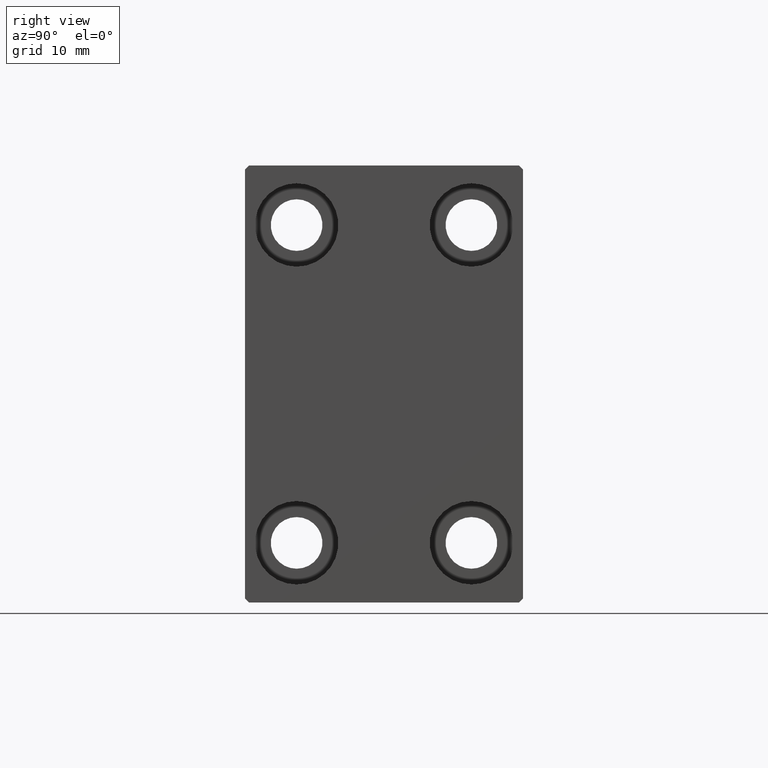
[diagram: clean part render]
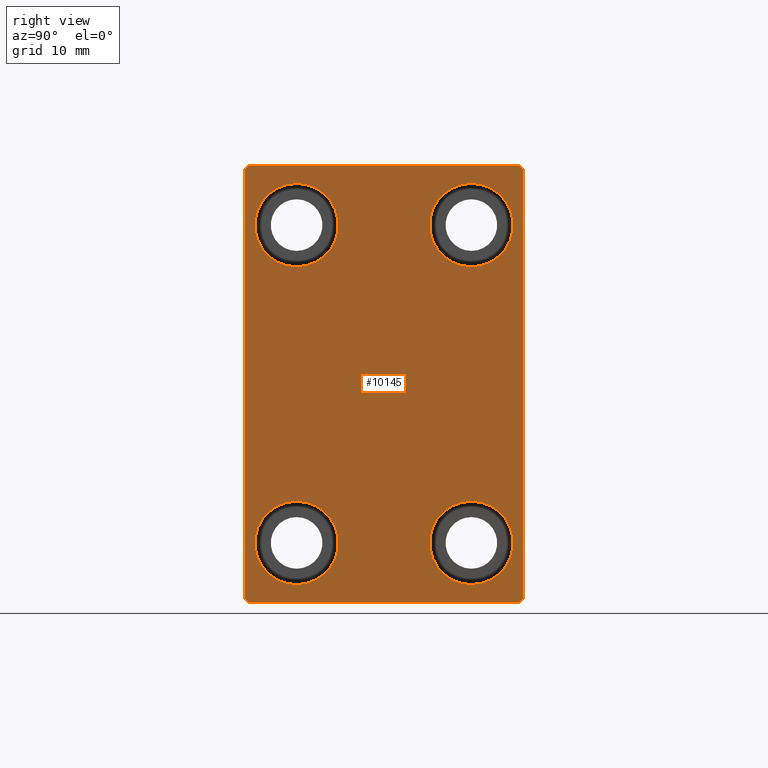
[diagram: same view with one face highlighted and labeled with its STEP entity id]
A machine part, right view. The second image highlights one B-rep face of the part: STEP entity #10145.
In plain terms, the highlighted planar face has unit normal (1, 0, 0).
Its self-contained STEP definition (entity closure, byte-faithful):
#1150 = DIRECTION ( 'NONE',  ( 0.000000000000000000, 1.000000000000000000, 0.000000000000000000 ) ) ;
#1172 = CARTESIAN_POINT ( 'NONE',  ( 56.00000000000000000, 11.00000000000000355, 14.75000000000000000 ) ) ;
#2263 = CARTESIAN_POINT ( 'NONE',  ( 56.00000000000000000, -11.00000000000000355, -20.00000000000000000 ) ) ;
#2316 = CARTESIAN_POINT ( 'NONE',  ( 56.00000000000000000, 11.00000000000000355, 20.00000000000000000 ) ) ;
#2341 = DIRECTION ( 'NONE',  ( -1.000000000000000000, -0.000000000000000000, -0.000000000000000000 ) ) ;
#2397 = CARTESIAN_POINT ( 'NONE',  ( 56.00000000000000000, 17.00000000000000711, -27.50000000000000355 ) ) ;
#2409 = VERTEX_POINT ( 'NONE', #30400 ) ;
#3475 = DIRECTION ( 'NONE',  ( -1.000000000000000000, -0.000000000000000000, -0.000000000000000000 ) ) ;
#3936 = DIRECTION ( 'NONE',  ( -1.000000000000000000, -0.000000000000000000, -0.000000000000000000 ) ) ;
#3972 = AXIS2_PLACEMENT_3D ( 'NONE', #7181, #23813, #27585 ) ;
#4050 = DIRECTION ( 'NONE',  ( 0.000000000000000000, 0.000000000000000000, 1.000000000000000000 ) ) ;
#4285 = EDGE_LOOP ( 'NONE', ( #13482, #14952 ) ) ;
#4695 = AXIS2_PLACEMENT_3D ( 'NONE', #39446, #9096, #22633 ) ;
#5252 = EDGE_CURVE ( 'NONE', #6722, #2409, #12410, .T. ) ;
#5301 = VERTEX_POINT ( 'NONE', #23706 ) ;
#5690 = EDGE_CURVE ( 'NONE', #24501, #8413, #24411, .T. ) ;
#5865 = DIRECTION ( 'NONE',  ( 0.000000000000000000, 0.000000000000000000, 1.000000000000000000 ) ) ;
#6140 = DIRECTION ( 'NONE',  ( 0.000000000000000000, 0.000000000000000000, 1.000000000000000000 ) ) ;
#6405 = VERTEX_POINT ( 'NONE', #19904 ) ;
#6585 = EDGE_CURVE ( 'NONE', #16582, #21945, #21591, .T. ) ;
#6722 = VERTEX_POINT ( 'NONE', #31560 ) ;
#6821 = CARTESIAN_POINT ( 'NONE',  ( 56.00000000000000000, 11.00000000000000355, 20.00000000000000000 ) ) ;
#7181 = CARTESIAN_POINT ( 'NONE',  ( 56.00000000000000000, 0.000000000000000000, 0.000000000000000000 ) ) ;
#7515 = CIRCLE ( 'NONE', #4695, 5.250000000000000888 ) ;
#7745 = CARTESIAN_POINT ( 'NONE',  ( 56.00000000000000000, -16.99999999999999289, -27.50000000000000355 ) ) ;
#7931 = EDGE_CURVE ( 'NONE', #20285, #14840, #31526, .T. ) ;
#8246 = CARTESIAN_POINT ( 'NONE',  ( 56.00000000000000000, -11.00000000000000355, 25.25000000000000000 ) ) ;
#8413 = VERTEX_POINT ( 'NONE', #9932 ) ;
#8557 = CARTESIAN_POINT ( 'NONE',  ( 56.00000000000000000, -11.00000000000000355, 20.00000000000000000 ) ) ;
#8562 = CARTESIAN_POINT ( 'NONE',  ( 56.00000000000000000, -22.25000000000000355, -22.25000000000000355 ) ) ;
#8885 = ORIENTED_EDGE ( 'NONE', *, *, #24106, .T. ) ;
#8989 = DIRECTION ( 'NONE',  ( 0.000000000000000000, 0.000000000000000000, 1.000000000000000000 ) ) ;
#9096 = DIRECTION ( 'NONE',  ( -1.000000000000000000, -0.000000000000000000, -0.000000000000000000 ) ) ;
#9509 = CIRCLE ( 'NONE', #29355, 5.250000000000000888 ) ;
#9787 = LINE ( 'NONE', #43239, #23695 ) ;
#9932 = CARTESIAN_POINT ( 'NONE',  ( 56.00000000000000000, -11.00000000000000355, -25.25000000000000000 ) ) ;
#10145 = ADVANCED_FACE ( 'NONE', ( #27137, #24040, #10273, #37545, #40623 ), #41278, .T. ) ;
#10233 = CIRCLE ( 'NONE', #13754, 5.250000000000000888 ) ;
#10273 = FACE_BOUND ( 'NONE', #17800, .T. ) ;
#10408 = ORIENTED_EDGE ( 'NONE', *, *, #34753, .T. ) ;
#10911 = DIRECTION ( 'NONE',  ( -1.000000000000000000, -0.000000000000000000, -0.000000000000000000 ) ) ;
#11458 = LINE ( 'NONE', #18111, #40746 ) ;
#11481 = LINE ( 'NONE', #28778, #29446 ) ;
#12213 = EDGE_CURVE ( 'NONE', #31361, #5301, #40974, .T. ) ;
#12410 = LINE ( 'NONE', #32796, #24376 ) ;
#13264 = AXIS2_PLACEMENT_3D ( 'NONE', #2263, #32190, #39488 ) ;
#13482 = ORIENTED_EDGE ( 'NONE', *, *, #17819, .T. ) ;
#13754 = AXIS2_PLACEMENT_3D ( 'NONE', #2316, #25392, #5865 ) ;
#14528 = VECTOR ( 'NONE', #1150, 1000.000000000000000 ) ;
#14840 = VERTEX_POINT ( 'NONE', #2397 ) ;
#14900 = EDGE_CURVE ( 'NONE', #17255, #25463, #28183, .T. ) ;
#14952 = ORIENTED_EDGE ( 'NONE', *, *, #5690, .T. ) ;
#16086 = VECTOR ( 'NONE', #20829, 1000.000000000000114 ) ;
#16582 = VERTEX_POINT ( 'NONE', #8246 ) ;
#16937 = EDGE_LOOP ( 'NONE', ( #17196, #40159 ) ) ;
#17196 = ORIENTED_EDGE ( 'NONE', *, *, #42559, .T. ) ;
#17255 = VERTEX_POINT ( 'NONE', #22105 ) ;
#17800 = EDGE_LOOP ( 'NONE', ( #23640, #28572 ) ) ;
#17819 = EDGE_CURVE ( 'NONE', #8413, #24501, #32381, .T. ) ;
#18111 = CARTESIAN_POINT ( 'NONE',  ( 56.00000000000000000, 17.50000000000000000, 27.50000000000000355 ) ) ;
#18798 = DIRECTION ( 'NONE',  ( 0.000000000000000000, -0.7071067811865474617, -0.7071067811865474617 ) ) ;
#19904 = CARTESIAN_POINT ( 'NONE',  ( 56.00000000000000000, 17.50000000000000711, -27.00000000000000355 ) ) ;
#20285 = VERTEX_POINT ( 'NONE', #7745 ) ;
#20803 = CARTESIAN_POINT ( 'NONE',  ( 56.00000000000000000, 11.00000000000000355, -25.25000000000000000 ) ) ;
#20829 = DIRECTION ( 'NONE',  ( -0.000000000000000000, -0.7071067811865474617, 0.7071067811865474617 ) ) ;
#21409 = CARTESIAN_POINT ( 'NONE',  ( 56.00000000000000000, -11.00000000000000355, -20.00000000000000000 ) ) ;
#21438 = DIRECTION ( 'NONE',  ( 0.000000000000000000, -1.000000000000000000, -1.982541115402065110E-16 ) ) ;
#21591 = CIRCLE ( 'NONE', #32915, 5.250000000000000888 ) ;
#21694 = VECTOR ( 'NONE', #24845, 1000.000000000000114 ) ;
#21874 = LINE ( 'NONE', #8562, #25751 ) ;
#21880 = EDGE_CURVE ( 'NONE', #2409, #20285, #21874, .T. ) ;
#21945 = VERTEX_POINT ( 'NONE', #36839 ) ;
#22105 = CARTESIAN_POINT ( 'NONE',  ( 56.00000000000000000, 11.00000000000000355, 25.25000000000000000 ) ) ;
#22633 = DIRECTION ( 'NONE',  ( 0.000000000000000000, 0.000000000000000000, 1.000000000000000000 ) ) ;
#23640 = ORIENTED_EDGE ( 'NONE', *, *, #24228, .T. ) ;
#23695 = VECTOR ( 'NONE', #33068, 1000.000000000000000 ) ;
#23706 = CARTESIAN_POINT ( 'NONE',  ( 56.00000000000000000, 16.99999999999999289, 27.50000000000000355 ) ) ;
#23813 = DIRECTION ( 'NONE',  ( 1.000000000000000000, 0.000000000000000000, 0.000000000000000000 ) ) ;
#24040 = FACE_BOUND ( 'NONE', #16937, .T. ) ;
#24106 = EDGE_CURVE ( 'NONE', #40224, #29830, #9509, .T. ) ;
#24228 = EDGE_CURVE ( 'NONE', #25463, #17255, #10233, .T. ) ;
#24376 = VECTOR ( 'NONE', #42324, 1000.000000000000000 ) ;
#24411 = CIRCLE ( 'NONE', #28647, 5.250000000000000888 ) ;
#24501 = VERTEX_POINT ( 'NONE', #28656 ) ;
#24583 = EDGE_CURVE ( 'NONE', #6405, #31361, #9787, .T. ) ;
#24845 = DIRECTION ( 'NONE',  ( -0.000000000000000000, 0.7071067811865474617, 0.7071067811865474617 ) ) ;
#25392 = DIRECTION ( 'NONE',  ( -1.000000000000000000, -0.000000000000000000, -0.000000000000000000 ) ) ;
#25463 = VERTEX_POINT ( 'NONE', #1172 ) ;
#25751 = VECTOR ( 'NONE', #32277, 1000.000000000000114 ) ;
#25962 = ORIENTED_EDGE ( 'NONE', *, *, #7931, .T. ) ;
#26530 = CARTESIAN_POINT ( 'NONE',  ( 56.00000000000000000, 11.00000000000000355, -20.00000000000000000 ) ) ;
#27121 = ORIENTED_EDGE ( 'NONE', *, *, #24583, .T. ) ;
#27137 = FACE_BOUND ( 'NONE', #37300, .T. ) ;
#27531 = LINE ( 'NONE', #41014, #21694 ) ;
#27585 = DIRECTION ( 'NONE',  ( 0.000000000000000000, 0.000000000000000000, -1.000000000000000000 ) ) ;
#27817 = EDGE_CURVE ( 'NONE', #5301, #32620, #11458, .T. ) ;
#27827 = ORIENTED_EDGE ( 'NONE', *, *, #33669, .T. ) ;
#28183 = CIRCLE ( 'NONE', #32412, 5.250000000000000888 ) ;
#28369 = ORIENTED_EDGE ( 'NONE', *, *, #27817, .T. ) ;
#28572 = ORIENTED_EDGE ( 'NONE', *, *, #14900, .T. ) ;
#28647 = AXIS2_PLACEMENT_3D ( 'NONE', #21409, #38251, #40907 ) ;
#28656 = CARTESIAN_POINT ( 'NONE',  ( 56.00000000000000000, -11.00000000000000355, -14.75000000000000000 ) ) ;
#28778 = CARTESIAN_POINT ( 'NONE',  ( 56.00000000000000000, -22.24999999999999645, 22.24999999999999645 ) ) ;
#29231 = ORIENTED_EDGE ( 'NONE', *, *, #5252, .T. ) ;
#29355 = AXIS2_PLACEMENT_3D ( 'NONE', #26530, #3475, #6140 ) ;
#29446 = VECTOR ( 'NONE', #18798, 1000.000000000000114 ) ;
#29830 = VERTEX_POINT ( 'NONE', #34707 ) ;
#30400 = CARTESIAN_POINT ( 'NONE',  ( 56.00000000000000000, -17.50000000000000000, -26.99999999999999645 ) ) ;
#30662 = ORIENTED_EDGE ( 'NONE', *, *, #21880, .T. ) ;
#30753 = DIRECTION ( 'NONE',  ( 0.000000000000000000, 0.000000000000000000, 1.000000000000000000 ) ) ;
#31097 = CARTESIAN_POINT ( 'NONE',  ( 56.00000000000000000, -11.00000000000000355, 20.00000000000000000 ) ) ;
#31361 = VERTEX_POINT ( 'NONE', #38102 ) ;
#31526 = LINE ( 'NONE', #35054, #14528 ) ;
#31560 = CARTESIAN_POINT ( 'NONE',  ( 56.00000000000000000, -17.50000000000000000, 26.99999999999998934 ) ) ;
#31746 = ORIENTED_EDGE ( 'NONE', *, *, #12213, .T. ) ;
#32190 = DIRECTION ( 'NONE',  ( -1.000000000000000000, -0.000000000000000000, -0.000000000000000000 ) ) ;
#32277 = DIRECTION ( 'NONE',  ( -0.000000000000000000, 0.7071067811865474617, -0.7071067811865474617 ) ) ;
#32381 = CIRCLE ( 'NONE', #13264, 5.250000000000000888 ) ;
#32412 = AXIS2_PLACEMENT_3D ( 'NONE', #6821, #3936, #30753 ) ;
#32620 = VERTEX_POINT ( 'NONE', #35956 ) ;
#32796 = CARTESIAN_POINT ( 'NONE',  ( 56.00000000000000000, -17.50000000000000000, 27.49999999999999645 ) ) ;
#32915 = AXIS2_PLACEMENT_3D ( 'NONE', #8557, #2341, #8989 ) ;
#33068 = DIRECTION ( 'NONE',  ( 0.000000000000000000, -1.261617073437677752E-16, 1.000000000000000000 ) ) ;
#33401 = ORIENTED_EDGE ( 'NONE', *, *, #33850, .T. ) ;
#33669 = EDGE_CURVE ( 'NONE', #29830, #40224, #7515, .T. ) ;
#33850 = EDGE_CURVE ( 'NONE', #32620, #6722, #11481, .T. ) ;
#34707 = CARTESIAN_POINT ( 'NONE',  ( 56.00000000000000000, 11.00000000000000355, -14.75000000000000000 ) ) ;
#34729 = EDGE_LOOP ( 'NONE', ( #28369, #33401, #29231, #30662, #25962, #10408, #27121, #31746 ) ) ;
#34753 = EDGE_CURVE ( 'NONE', #14840, #6405, #27531, .T. ) ;
#35054 = CARTESIAN_POINT ( 'NONE',  ( 56.00000000000000000, -17.50000000000000000, -27.50000000000000355 ) ) ;
#35956 = CARTESIAN_POINT ( 'NONE',  ( 56.00000000000000000, -16.99999999999999289, 27.49999999999999645 ) ) ;
#36839 = CARTESIAN_POINT ( 'NONE',  ( 56.00000000000000000, -11.00000000000000355, 14.75000000000000000 ) ) ;
#37300 = EDGE_LOOP ( 'NONE', ( #8885, #27827 ) ) ;
#37545 = FACE_BOUND ( 'NONE', #4285, .T. ) ;
#38102 = CARTESIAN_POINT ( 'NONE',  ( 56.00000000000000000, 17.50000000000000000, 26.99999999999999645 ) ) ;
#38251 = DIRECTION ( 'NONE',  ( -1.000000000000000000, -0.000000000000000000, -0.000000000000000000 ) ) ;
#38829 = AXIS2_PLACEMENT_3D ( 'NONE', #31097, #10911, #4050 ) ;
#38862 = CIRCLE ( 'NONE', #38829, 5.250000000000000888 ) ;
#39446 = CARTESIAN_POINT ( 'NONE',  ( 56.00000000000000000, 11.00000000000000355, -20.00000000000000000 ) ) ;
#39488 = DIRECTION ( 'NONE',  ( 0.000000000000000000, 0.000000000000000000, 1.000000000000000000 ) ) ;
#40159 = ORIENTED_EDGE ( 'NONE', *, *, #6585, .T. ) ;
#40224 = VERTEX_POINT ( 'NONE', #20803 ) ;
#40623 = FACE_OUTER_BOUND ( 'NONE', #34729, .T. ) ;
#40746 = VECTOR ( 'NONE', #21438, 1000.000000000000000 ) ;
#40907 = DIRECTION ( 'NONE',  ( 0.000000000000000000, 0.000000000000000000, 1.000000000000000000 ) ) ;
#40974 = LINE ( 'NONE', #41620, #16086 ) ;
#41014 = CARTESIAN_POINT ( 'NONE',  ( 56.00000000000000000, 22.25000000000000711, -22.25000000000000711 ) ) ;
#41278 = PLANE ( 'NONE',  #3972 ) ;
#41620 = CARTESIAN_POINT ( 'NONE',  ( 56.00000000000000000, 22.25000000000000355, 22.25000000000000355 ) ) ;
#42324 = DIRECTION ( 'NONE',  ( 0.000000000000000000, 0.000000000000000000, -1.000000000000000000 ) ) ;
#42559 = EDGE_CURVE ( 'NONE', #21945, #16582, #38862, .T. ) ;
#43239 = CARTESIAN_POINT ( 'NONE',  ( 56.00000000000000000, 17.50000000000000711, -27.50000000000000355 ) ) ;